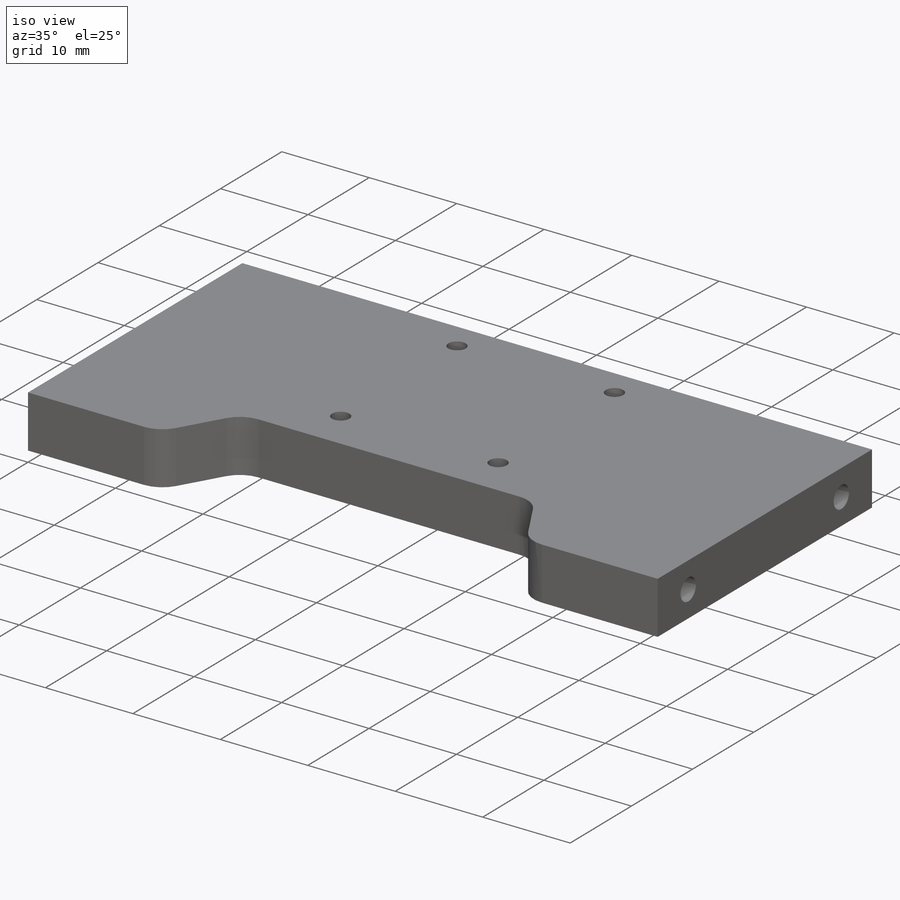
[diagram: iso view]
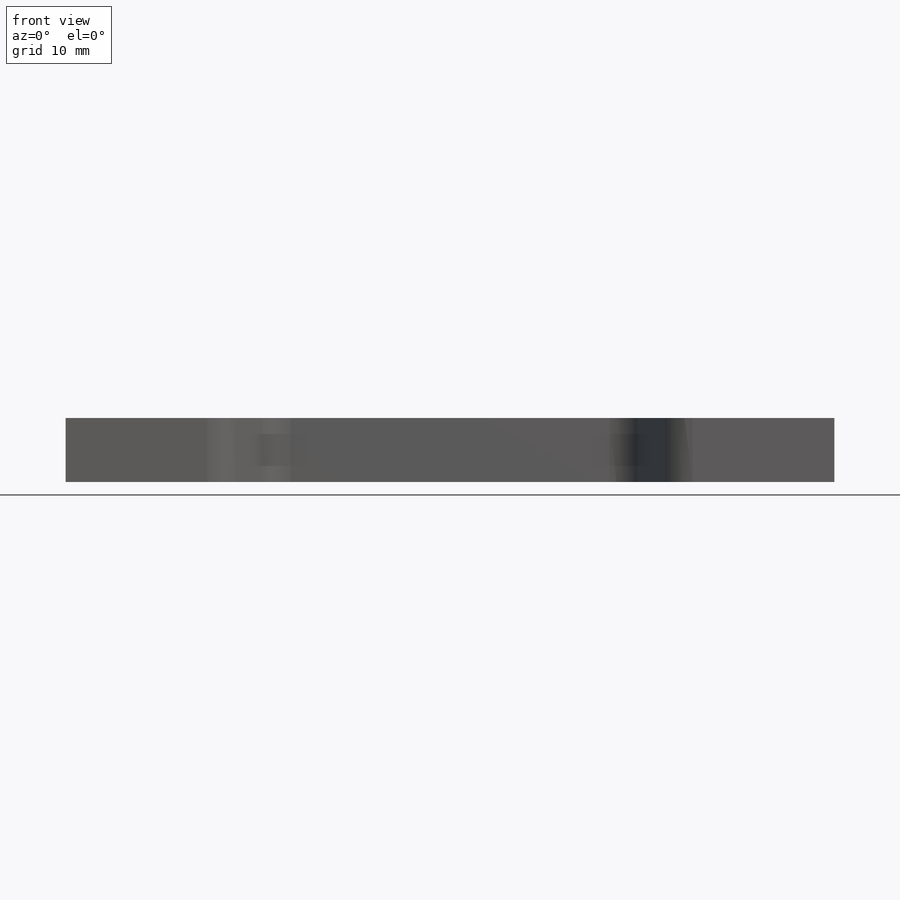
[diagram: front view]
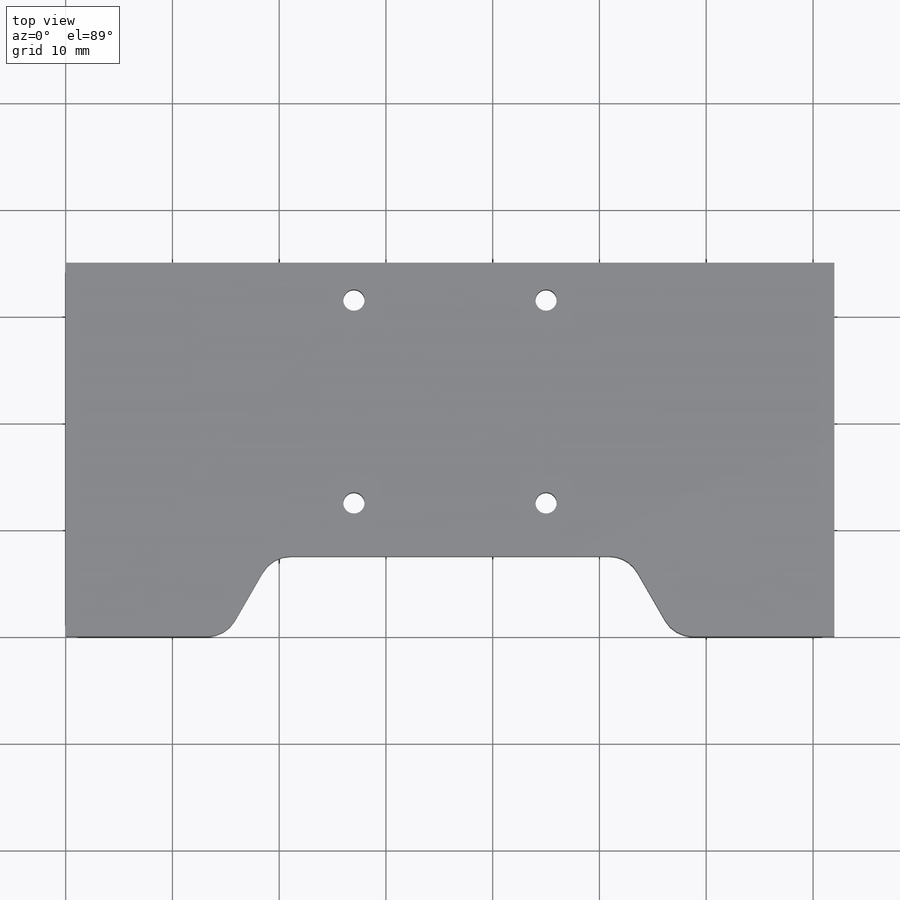
[diagram: top view]
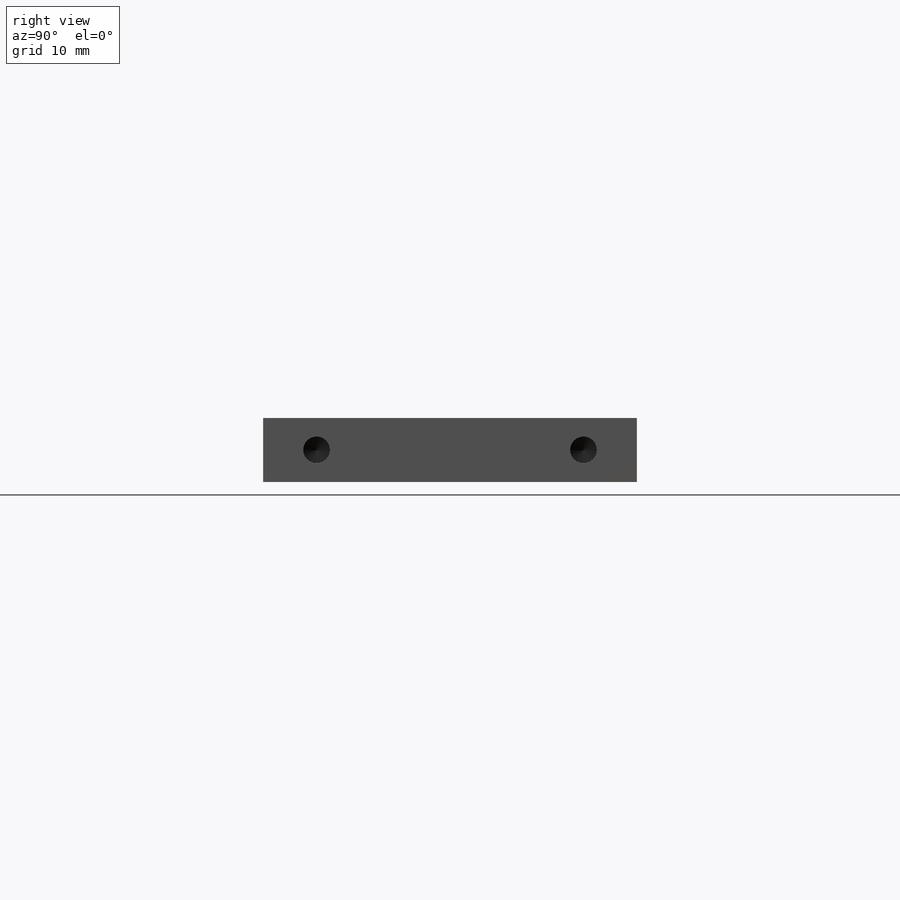
[diagram: right view]
SOLIDWORKS PART (.sldprt)
format: sldprt  version: not decoded by parser v0  size: 271,360 bytes
history: native  units: mm
features: sketch x7, cut_extrude x2, hole x2, material x1, extrude x1, fillet x1 (+11 scaffold rows collapsed)
feature tree (25):
  scaffold x11  (default folders/planes/origin — collapsed)
  material  "1060 Alloy"
  sketch  "Sketch1"  dims[D1=72.0mm D2=35.0mm]
  extrude  "Boss-Extrude1"  Depth=6mm
  sketch  "Sketch4"  dims[c1.D5=4.0mm c1.D4=4.0mm c2.D5=4.0mm c2.D1=10.0mm c2.D2=25.0mm c2.D3=22.5mm c2.D4=3.0mm c2.D6=10.0mm c3.D4=13.0mm c3.D1=15.0mm c3.D2=15.0mm c3.D3=7.5mm c4.D1=~2.904945mm c5.D1=60.0deg c5.D2=~10.504164mm c6.D2=60.0deg c6.D4=15.0mm c6.D5=15.0mm]
  cut_extrude  "Cut-Extrude3"  [1 undecoded]
  sketch  "Sketch5"  dims[c1.D3=2.0mm c1.D4=2.0mm c1.D1=18.0mm c1.D2=19.0mm c2.D4=5.0mm c2.D5=27.0mm c2.D6=27.0mm]
  cut_extrude  "Cut-Extrude4"  [1 undecoded]
  fillet  "Fillet1"  Radius=3mm
  hole  "Tap Drill for M3 Tap1"  Diameter=2.5mm Depth=10mm
  sketch  "Sketch7"  dims[D1=5.0mm D2=25.0mm D3=3.0mm]
  sketch  "Sketch6"  dims[hole-wizard template sketch: 50 standard entries collapsed; hole parameters above]
  hole  "Tap Drill for M3 Tap2"  Diameter=2.5mm Depth=10mm
  sketch  "Sketch9"  dims[D1=5.0mm D2=25.0mm D3=3.0mm]
  sketch  "Sketch8"  dims[hole-wizard template sketch: 50 standard entries collapsed; hole parameters above]
decode coverage: 11 of 13 modeling features carry decoded parameters
note: ~ marks probable driven/reference dimensions
note: 2 parameter values undecoded
note: suppression state not decoded; provenance and decode notes live in map.json
